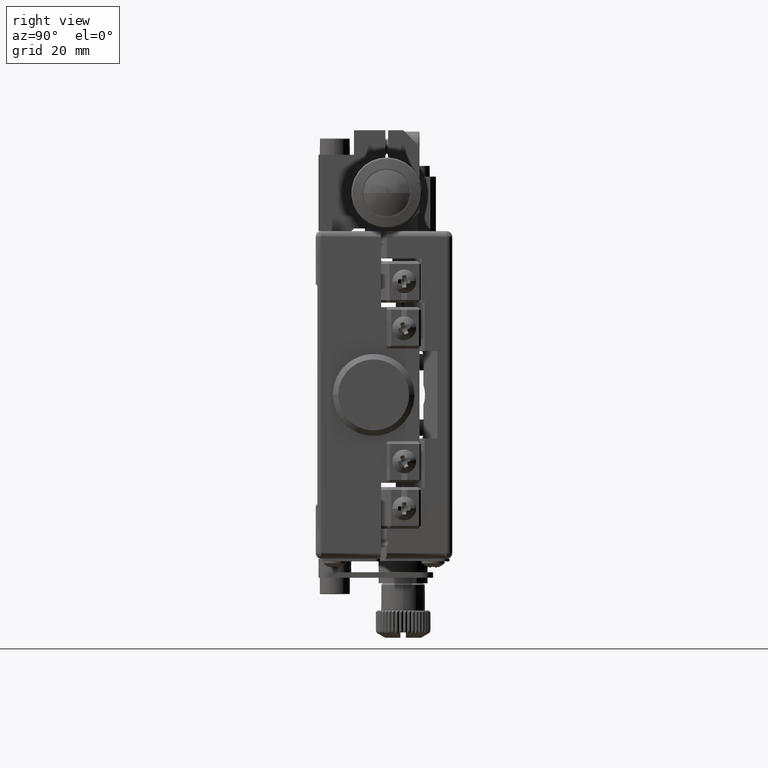
[diagram: clean part render]
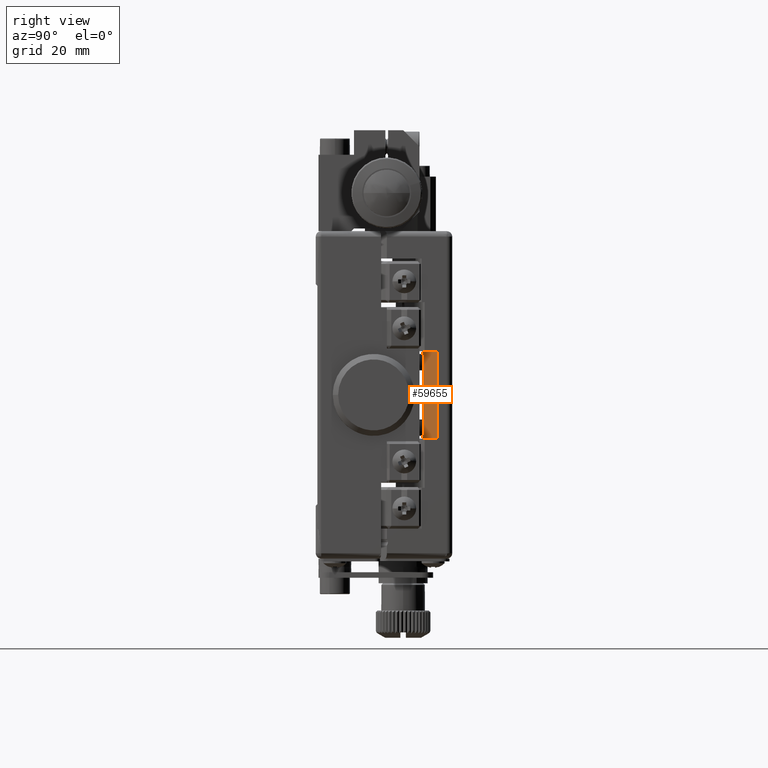
[diagram: same view with one face highlighted and labeled with its STEP entity id]
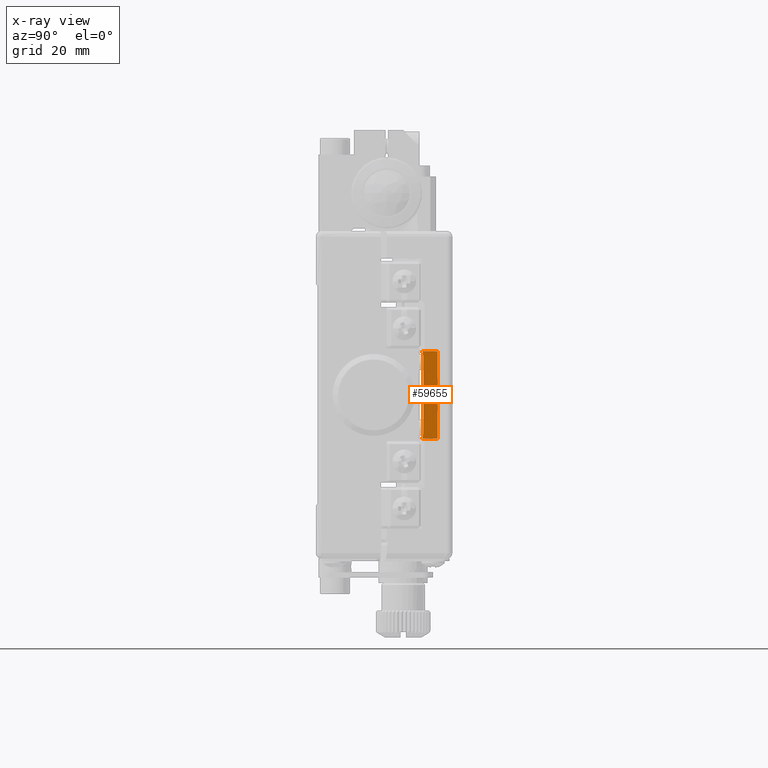
[diagram: x-ray of the same camera — body ghosted, the highlighted face saturated]
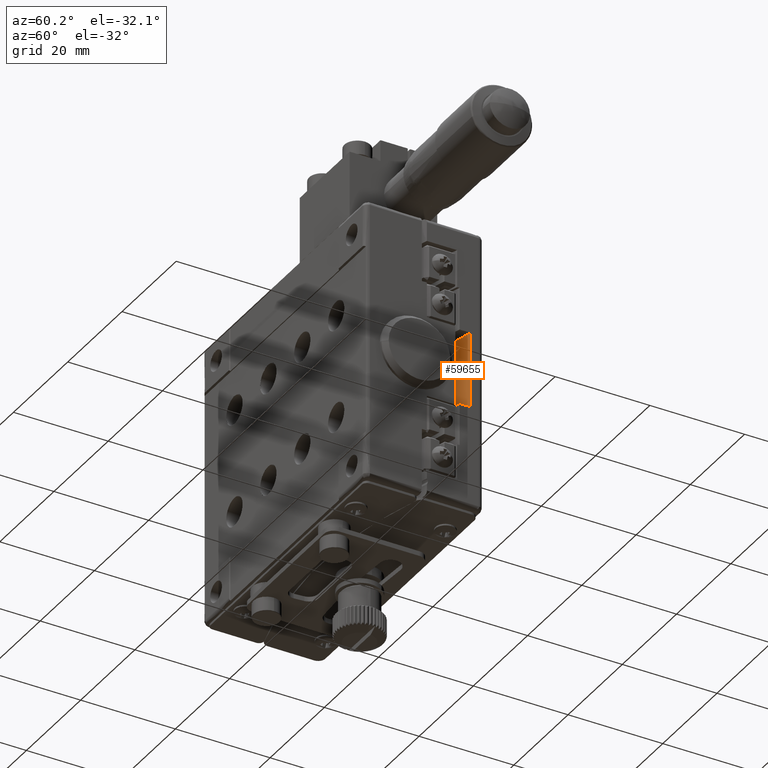
[diagram: same view with one face highlighted and labeled with its STEP entity id]
A machine part, right view. The second image highlights one B-rep face of the part: STEP entity #59655.
The next image is the same camera in x-ray: the body ghosted, the highlighted face saturated — about 0% of this face is hidden behind the body in this view.
A second angle (auxiliary view) of the same face is appended — the face is thin or edge-on in the first view.
In plain terms, the highlighted planar face has unit normal (0.2756, -0.9613, 0).
Its self-contained STEP definition (entity closure, byte-faithful):
#318 = DIRECTION ( 'NONE',  ( 0.9612616959383186721, 0.2756373558169997739, 0.000000000000000000 ) ) ;
#755 = ORIENTED_EDGE ( 'NONE', *, *, #14011, .F. ) ;
#961 = B_SPLINE_CURVE_WITH_KNOTS ( 'NONE', 3,
 ( #76065, #5221, #34613, #36813, #17582, #23019, #11764, #72063, #41212, #22634 ),
 .UNSPECIFIED., .F., .F.,
 ( 4, 2, 2, 2, 4 ),
 ( 5.235987755983002145, 5.759586531581297741, 6.283185307179593337, 6.806784082777889822, 7.330382858376185418 ),
 .UNSPECIFIED. ) ;
#1446 = EDGE_CURVE ( 'NONE', #7473, #46319, #961, .T. ) ;
#2112 = VERTEX_POINT ( 'NONE', #13513 ) ;
#5221 = CARTESIAN_POINT ( 'NONE',  ( 21.30605251272696776, -80.19294932600489290, -1.555351306959784630 ) ) ;
#6267 = LINE ( 'NONE', #48079, #10903 ) ;
#6299 = CARTESIAN_POINT ( 'NONE',  ( 20.99999999999998224, -80.28070847182925718, -6.500000000000002665 ) ) ;
#7473 = VERTEX_POINT ( 'NONE', #63953 ) ;
#7601 = VECTOR ( 'NONE', #69103, 1000.000000000000000 ) ;
#9713 = LINE ( 'NONE', #36576, #63124 ) ;
#10858 = ORIENTED_EDGE ( 'NONE', *, *, #71052, .F. ) ;
#10903 = VECTOR ( 'NONE', #36446, 1000.000000000000000 ) ;
#11764 = CARTESIAN_POINT ( 'NONE',  ( 21.90378481746746786, -80.02176985959795275, 0.7038328400397064755 ) ) ;
#11813 = CARTESIAN_POINT ( 'NONE',  ( 21.00000000000002132, -80.28070847182925718, 6.774291885177428973 ) ) ;
#13449 = VERTEX_POINT ( 'NONE', #6299 ) ;
#13513 = CARTESIAN_POINT ( 'NONE',  ( 20.32287565553232511, -80.47487075319033067, 7.999999999999996447 ) ) ;
#14011 = EDGE_CURVE ( 'NONE', #2112, #18794, #18111, .T. ) ;
#14499 = EDGE_CURVE ( 'NONE', #17115, #71311, #9713, .T. ) ;
#16364 = ORIENTED_EDGE ( 'NONE', *, *, #67670, .F. ) ;
#17115 = VERTEX_POINT ( 'NONE', #51080 ) ;
#17332 = DIRECTION ( 'NONE',  ( 3.103381831646717575E-15, 0.000000000000000000, 1.000000000000000000 ) ) ;
#17582 = CARTESIAN_POINT ( 'NONE',  ( 21.99999999999988631, -79.99396308607050798, -0.3550238505568194536 ) ) ;
#18111 = LINE ( 'NONE', #30092, #61077 ) ;
#18259 = CARTESIAN_POINT ( 'NONE',  ( 20.99999999999999289, -80.28070847182927139, 1.732050807568882522 ) ) ;
#18794 = VERTEX_POINT ( 'NONE', #45128 ) ;
#21648 = DIRECTION ( 'NONE',  ( 0.000000000000000000, 0.000000000000000000, 1.000000000000000000 ) ) ;
#22634 = CARTESIAN_POINT ( 'NONE',  ( 20.99999999999999289, -80.28070847182927139, 1.732050807568882522 ) ) ;
#23019 = CARTESIAN_POINT ( 'NONE',  ( 22.00000000000010303, -79.99396308607043693, 0.3550238505556344570 ) ) ;
#23594 = EDGE_CURVE ( 'NONE', #17115, #18794, #68728, .T. ) ;
#23997 = VECTOR ( 'NONE', #17332, 1000.000000000000000 ) ;
#26032 = CARTESIAN_POINT ( 'NONE',  ( 20.52859456941539307, -80.41588180387105922, 7.818572971294354801 ) ) ;
#26702 = PLANE ( 'NONE',  #39000 ) ;
#28176 = VERTEX_POINT ( 'NONE', #53489 ) ;
#30092 = CARTESIAN_POINT ( 'NONE',  ( 20.32287565553232156, -80.47487075319033067, 7.999999999999994671 ) ) ;
#34613 = CARTESIAN_POINT ( 'NONE',  ( 21.55657808704448897, -80.12126297956528731, -1.302628863825270988 ) ) ;
#35440 = CARTESIAN_POINT ( 'NONE',  ( 20.76479281770518526, -80.34815304604964581, -7.610265696266348634 ) ) ;
#36446 = DIRECTION ( 'NONE',  ( 3.103381831646739663E-15, 0.000000000000000000, 1.000000000000000000 ) ) ;
#36574 = EDGE_LOOP ( 'NONE', ( #16364, #45976, #44856, #755, #64272, #40235, #54919, #10858 ) ) ;
#36576 = CARTESIAN_POINT ( 'NONE',  ( 30.00000000000000000, -77.69999999999998863, -8.000000000000005329 ) ) ;
#36813 = CARTESIAN_POINT ( 'NONE',  ( 21.90378481746711259, -80.02176985959802380, -0.7038328400405142737 ) ) ;
#39000 = AXIS2_PLACEMENT_3D ( 'NONE', #51095, #62303, #21648 ) ;
#40235 = ORIENTED_EDGE ( 'NONE', *, *, #41004, .F. ) ;
#41004 = EDGE_CURVE ( 'NONE', #46319, #28176, #6267, .T. ) ;
#41212 = CARTESIAN_POINT ( 'NONE',  ( 21.30605251272693579, -80.19294932600493553, 1.555351306959823710 ) ) ;
#43058 = CARTESIAN_POINT ( 'NONE',  ( 20.70479275922051698, -80.36535778596538648, 7.584458843191781874 ) ) ;
#43454 = CARTESIAN_POINT ( 'NONE',  ( 20.32287565553232511, -80.47487075319033067, 7.999999999999996447 ) ) ;
#44856 = ORIENTED_EDGE ( 'NONE', *, *, #23594, .T. ) ;
#45128 = CARTESIAN_POINT ( 'NONE',  ( 30.00000000000000000, -77.69999999999998863, 7.999999999999992895 ) ) ;
#45918 = CARTESIAN_POINT ( 'NONE',  ( 20.32287565553225761, -80.47487075319034489, -8.000000000000001776 ) ) ;
#45976 = ORIENTED_EDGE ( 'NONE', *, *, #14499, .F. ) ;
#46319 = VERTEX_POINT ( 'NONE', #18259 ) ;
#47363 = CARTESIAN_POINT ( 'NONE',  ( 20.32287565553225761, -80.47487075319034489, -8.000000000000001776 ) ) ;
#48079 = CARTESIAN_POINT ( 'NONE',  ( 20.99999999999999645, -80.28070847182925718, 1.254055888325771084 ) ) ;
#51080 = CARTESIAN_POINT ( 'NONE',  ( 30.00000000000000000, -77.69999999999998863, -8.000000000000005329 ) ) ;
#51095 = CARTESIAN_POINT ( 'NONE',  ( 30.96913921486300936, -77.42210380198010000, -9.601199999999998624 ) ) ;
#52473 = EDGE_CURVE ( 'NONE', #2112, #28176, #53958, .T. ) ;
#52898 = CARTESIAN_POINT ( 'NONE',  ( 21.00000000000001421, -80.28070847182925718, 6.499999999999997335 ) ) ;
#53489 = CARTESIAN_POINT ( 'NONE',  ( 21.00000000000001421, -80.28070847182925718, 6.499999999999997335 ) ) ;
#53958 = B_SPLINE_CURVE_WITH_KNOTS ( 'NONE', 3,
 ( #43454, #26032, #43058, #66685, #11813, #52898 ),
 .UNSPECIFIED., .F., .F.,
 ( 4, 2, 4 ),
 ( 2.293530574608316552, 2.717561614099056833, 3.141592653589797113 ),
 .UNSPECIFIED. ) ;
#54414 = DIRECTION ( 'NONE',  ( -0.9612616959383187831, -0.2756373558169993299, 0.000000000000000000 ) ) ;
#54623 = FACE_OUTER_BOUND ( 'NONE', #36574, .T. ) ;
#54919 = ORIENTED_EDGE ( 'NONE', *, *, #1446, .F. ) ;
#59164 = CARTESIAN_POINT ( 'NONE',  ( 20.99999999999997158, -80.28070847182924297, -6.977994919243120542 ) ) ;
#59655 = ADVANCED_FACE ( 'NONE', ( #54623 ), #26702, .T. ) ;
#61077 = VECTOR ( 'NONE', #318, 1000.000000000000114 ) ;
#62303 = DIRECTION ( 'NONE',  ( 0.2756373558170003846, -0.9612616959383185611, 0.000000000000000000 ) ) ;
#62901 = CARTESIAN_POINT ( 'NONE',  ( 30.00000000000000000, -77.69999999999997442, -9.601199999999998624 ) ) ;
#63090 = B_SPLINE_CURVE_WITH_KNOTS ( 'NONE', 3,
 ( #45918, #35440, #69932, #75334 ),
 .UNSPECIFIED., .F., .F.,
 ( 4, 4 ),
 ( -3.989654732571279006, -3.141592653589797113 ),
 .UNSPECIFIED. ) ;
#63124 = VECTOR ( 'NONE', #54414, 1000.000000000000114 ) ;
#63953 = CARTESIAN_POINT ( 'NONE',  ( 21.00000000000000000, -80.28070847182925718, -1.732050807568858319 ) ) ;
#64272 = ORIENTED_EDGE ( 'NONE', *, *, #52473, .T. ) ;
#66685 = CARTESIAN_POINT ( 'NONE',  ( 20.94095855184411903, -80.29763833465645462, 7.061292467872797296 ) ) ;
#67670 = EDGE_CURVE ( 'NONE', #71311, #13449, #63090, .T. ) ;
#68728 = LINE ( 'NONE', #62901, #7601 ) ;
#69103 = DIRECTION ( 'NONE',  ( 0.000000000000000000, 0.000000000000000000, 1.000000000000000000 ) ) ;
#69932 = CARTESIAN_POINT ( 'NONE',  ( 20.99999999999996447, -80.28070847182925718, -7.058486580072507621 ) ) ;
#71052 = EDGE_CURVE ( 'NONE', #13449, #7473, #75427, .T. ) ;
#71311 = VERTEX_POINT ( 'NONE', #47363 ) ;
#72063 = CARTESIAN_POINT ( 'NONE',  ( 21.55657808704469858, -80.12126297956518783, 1.302628863825106897 ) ) ;
#75334 = CARTESIAN_POINT ( 'NONE',  ( 20.99999999999998224, -80.28070847182925718, -6.500000000000002665 ) ) ;
#75427 = LINE ( 'NONE', #59164, #23997 ) ;
#76065 = CARTESIAN_POINT ( 'NONE',  ( 21.00000000000000000, -80.28070847182925718, -1.732050807568858319 ) ) ;